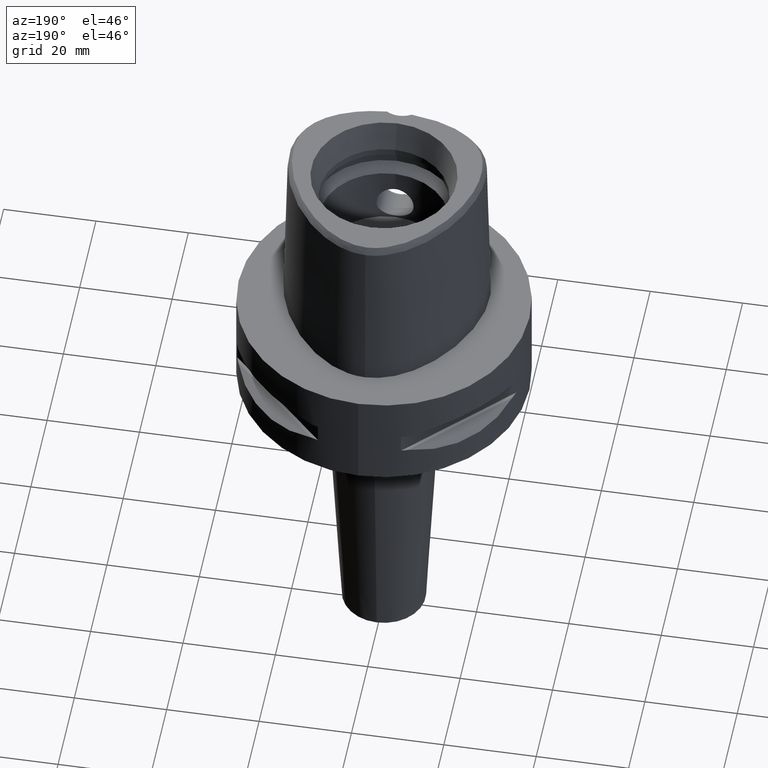
[diagram: clean part render]
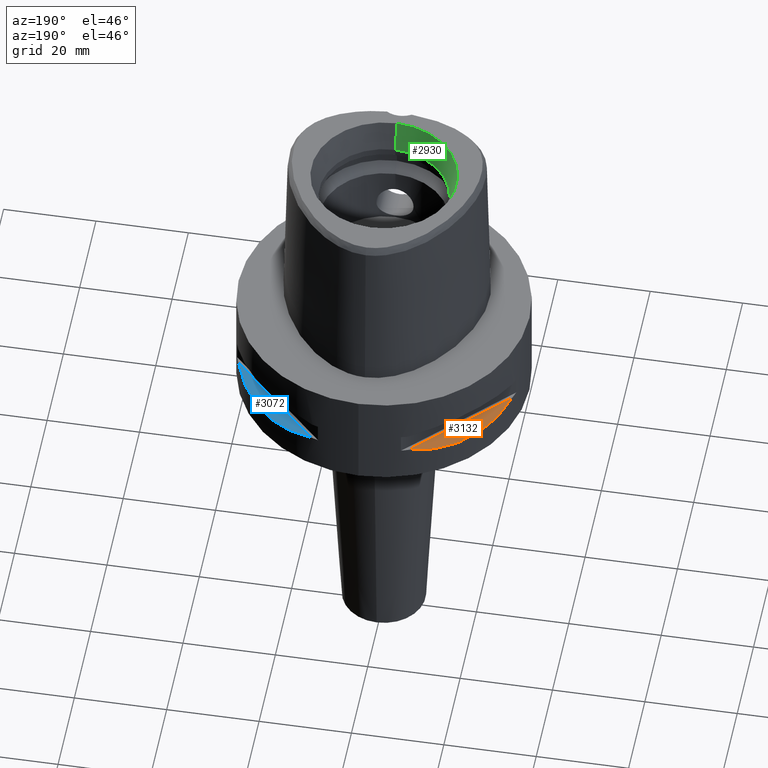
[diagram: same view with three faces highlighted in distinct colors, each labeled with its STEP entity id]
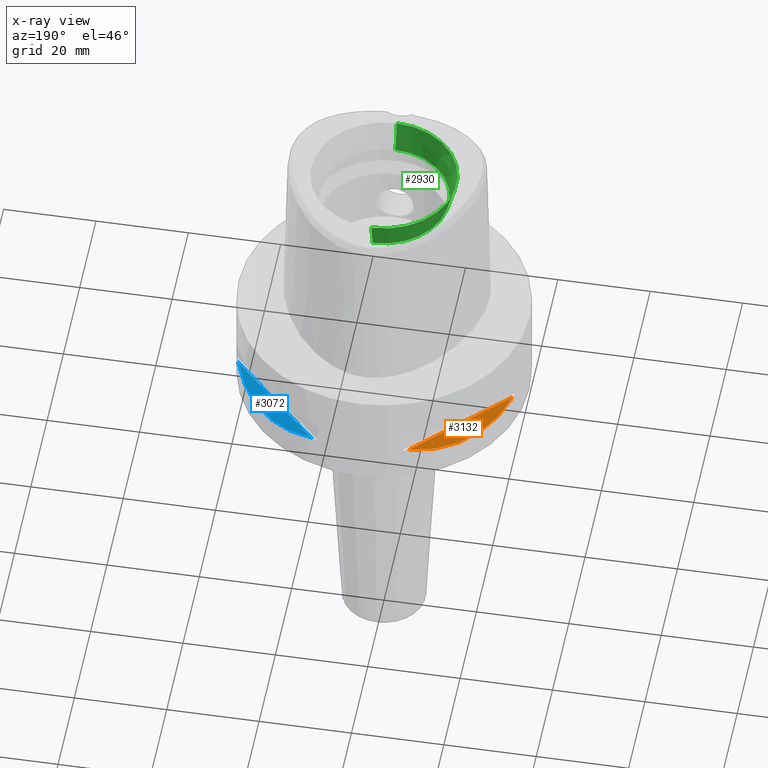
[diagram: x-ray of the same camera — body ghosted, the three highlighted faces saturated]
A machine part, auxiliary view with three faces highlighted in distinct colors.
The next image is the same camera in x-ray (body ghosted, the three faces saturated) — at least one of them is partly hidden behind the body in this view.
Their STEP definitions:

[orange] entity #3132 — the highlighted planar face has unit normal (0.3536, -0.3536, -0.866).
#408=CARTESIAN_POINT('',(-1.044775724750E1,2.971690375018E1,-1.405E1));
#409=CARTESIAN_POINT('',(-1.282388988809E1,2.888151197365E1,-1.467900482380E1));
#410=CARTESIAN_POINT('',(-1.711282138769E1,2.674739463903E1,-1.555870402293E1));
#411=CARTESIAN_POINT('',(-2.244574140438E1,2.244574140438E1,-1.597971692371E1));
#412=CARTESIAN_POINT('',(-2.674739463903E1,1.711282138769E1,-1.555870402293E1));
#413=CARTESIAN_POINT('',(-2.888151197365E1,1.282388988809E1,-1.467900482380E1));
#414=CARTESIAN_POINT('',(-2.971690375018E1,1.044775724750E1,-1.405E1));
#1336=DIRECTION('',(-7.071067811865E-1,-7.071067811865E-1,0.E0));
#1337=VECTOR('',#1336,2.725068831944E1);
#1338=CARTESIAN_POINT('',(-1.044775724750E1,2.971690375018E1,-1.405E1));
#1339=LINE('',#1338,#1337);
#1454=CARTESIAN_POINT('',(-1.044775724750E1,2.971690375018E1,-1.405E1));
#1455=VERTEX_POINT('',#1454);
#1456=VERTEX_POINT('',#414);
#3123=CARTESIAN_POINT('',(-3.776000002850E1,2.404660969175E0,-1.405E1));
#3124=DIRECTION('',(3.535533905933E-1,-3.535533905933E-1,-8.660254037844E-1));
#3125=DIRECTION('',(-6.123724356958E-1,6.123724356958E-1,-5.E-1));
#3126=AXIS2_PLACEMENT_3D('',#3123,#3124,#3125);
#3127=PLANE('',#3126);
#3128=ORIENTED_EDGE('',*,*,#2285,.F.);
#3129=ORIENTED_EDGE('',*,*,#3116,.T.);
#3130=EDGE_LOOP('',(#3128,#3129));
#3131=FACE_OUTER_BOUND('',#3130,.F.);
#415=B_SPLINE_CURVE_WITH_KNOTS('',3,(#408,#409,#410,#411,#412,#413,#414),
.UNSPECIFIED.,.F.,.F.,(4,1,1,1,4),(0.E0,2.5E-1,5.E-1,7.5E-1,1.E0),
.UNSPECIFIED.);
#2285=EDGE_CURVE('',#1455,#1456,#415,.T.);
#3116=EDGE_CURVE('',#1455,#1456,#1339,.T.);
#3132=ADVANCED_FACE('',(#3131),#3127,.F.);

[blue] entity #3072 — the highlighted planar face has unit normal (-0.3536, -0.3536, -0.866).
#490=CARTESIAN_POINT('',(2.971690375018E1,1.044775724750E1,-1.405E1));
#491=CARTESIAN_POINT('',(2.888151197365E1,1.282388988809E1,-1.467900482380E1));
#492=CARTESIAN_POINT('',(2.674739463903E1,1.711282138769E1,-1.555870402293E1));
#493=CARTESIAN_POINT('',(2.244574140438E1,2.244574140438E1,-1.597971692371E1));
#494=CARTESIAN_POINT('',(1.711282138769E1,2.674739463903E1,-1.555870402293E1));
#495=CARTESIAN_POINT('',(1.282388988809E1,2.888151197365E1,-1.467900482380E1));
#496=CARTESIAN_POINT('',(1.044775724750E1,2.971690375018E1,-1.405E1));
#1265=DIRECTION('',(-7.071067811865E-1,7.071067811865E-1,0.E0));
#1266=VECTOR('',#1265,2.725068831944E1);
#1267=CARTESIAN_POINT('',(2.971690375018E1,1.044775724750E1,-1.405E1));
#1268=LINE('',#1267,#1266);
#1493=CARTESIAN_POINT('',(2.971690375018E1,1.044775724750E1,-1.405E1));
#1494=VERTEX_POINT('',#1493);
#1495=VERTEX_POINT('',#496);
#3063=CARTESIAN_POINT('',(2.404660969175E0,3.776000002850E1,-1.405E1));
#3064=DIRECTION('',(-3.535533905933E-1,-3.535533905933E-1,-8.660254037844E-1));
#3065=DIRECTION('',(6.123724356958E-1,6.123724356958E-1,-5.E-1));
#3066=AXIS2_PLACEMENT_3D('',#3063,#3064,#3065);
#3067=PLANE('',#3066);
#3068=ORIENTED_EDGE('',*,*,#2352,.F.);
#3069=ORIENTED_EDGE('',*,*,#3056,.T.);
#3070=EDGE_LOOP('',(#3068,#3069));
#3071=FACE_OUTER_BOUND('',#3070,.F.);
#497=B_SPLINE_CURVE_WITH_KNOTS('',3,(#490,#491,#492,#493,#494,#495,#496),
.UNSPECIFIED.,.F.,.F.,(4,1,1,1,4),(0.E0,2.5E-1,5.E-1,7.5E-1,1.E0),
.UNSPECIFIED.);
#2352=EDGE_CURVE('',#1494,#1495,#497,.T.);
#3056=EDGE_CURVE('',#1494,#1495,#1268,.T.);
#3072=ADVANCED_FACE('',(#3071),#3067,.F.);

[green] entity #2930 — the highlighted conical surface has half-angle 15 deg.
#120=CARTESIAN_POINT('',(0.E0,0.E0,3.8E1));
#121=DIRECTION('',(0.E0,0.E0,1.E0));
#122=DIRECTION('',(0.E0,1.E0,0.E0));
#123=AXIS2_PLACEMENT_3D('',#120,#121,#122);
#1084=CARTESIAN_POINT('',(0.E0,0.E0,3.16E1));
#1085=DIRECTION('',(0.E0,0.E0,1.E0));
#1086=DIRECTION('',(0.E0,1.E0,0.E0));
#1087=AXIS2_PLACEMENT_3D('',#1084,#1085,#1086);
#1092=DIRECTION('',(0.E0,-2.588190451026E-1,9.659258262891E-1));
#1093=VECTOR('',#1092,6.625767554625E0);
#1094=CARTESIAN_POINT('',(0.E0,-1.4E1,3.16E1));
#1095=LINE('',#1094,#1093);
#1107=DIRECTION('',(0.E0,2.588190451026E-1,9.659258262891E-1));
#1108=VECTOR('',#1107,6.625767554625E0);
#1109=CARTESIAN_POINT('',(0.E0,1.4E1,3.16E1));
#1110=LINE('',#1109,#1108);
#1421=CARTESIAN_POINT('',(0.E0,1.571487483156E1,3.8E1));
#1422=CARTESIAN_POINT('',(0.E0,-1.571487483156E1,3.8E1));
#1423=VERTEX_POINT('',#1421);
#1424=VERTEX_POINT('',#1422);
#1565=CARTESIAN_POINT('',(0.E0,-1.4E1,3.16E1));
#1566=VERTEX_POINT('',#1565);
#1567=CARTESIAN_POINT('',(0.E0,1.4E1,3.16E1));
#1568=VERTEX_POINT('',#1567);
#2917=CARTESIAN_POINT('',(0.E0,0.E0,3.48E1));
#2918=DIRECTION('',(0.E0,0.E0,1.E0));
#2919=DIRECTION('',(0.E0,1.E0,0.E0));
#2920=AXIS2_PLACEMENT_3D('',#2917,#2918,#2919);
#2921=CONICAL_SURFACE('',#2920,1.485743741578E1,1.5E1);
#2922=ORIENTED_EDGE('',*,*,#1584,.F.);
#2924=ORIENTED_EDGE('',*,*,#2923,.F.);
#2925=ORIENTED_EDGE('',*,*,#2910,.T.);
#2927=ORIENTED_EDGE('',*,*,#2926,.T.);
#2928=EDGE_LOOP('',(#2922,#2924,#2925,#2927));
#2929=FACE_OUTER_BOUND('',#2928,.F.);
#124=CIRCLE('',#123,1.571487483156E1);
#1088=CIRCLE('',#1087,1.4E1);
#1584=EDGE_CURVE('',#1423,#1424,#124,.T.);
#2910=EDGE_CURVE('',#1568,#1566,#1088,.T.);
#2923=EDGE_CURVE('',#1568,#1423,#1110,.T.);
#2926=EDGE_CURVE('',#1566,#1424,#1095,.T.);
#2930=ADVANCED_FACE('',(#2929),#2921,.F.);